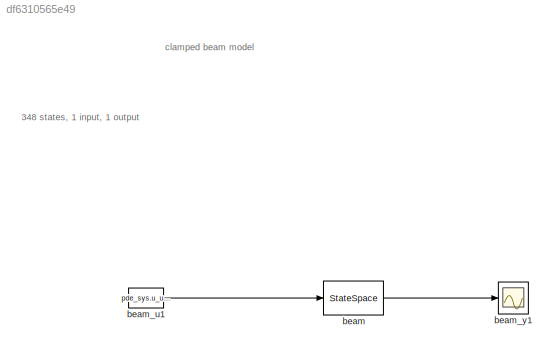
MODEL slx_df6310565e49
KIND model
BLOCK [StateSpace] beam
  A = beam_sys.sys.a
  B = beam_sys.sys.b
  C = beam_sys.sys.c
  D = beam_sys.sys.d
  Ports = [1, 1]
  X0 = beam_sys.x0_lb
BLOCK [Constant] beam_u1
  Value = pde_sys.u_ub(1)
BLOCK [Scope] beam_y1
  Floating = off
  NumInputPorts = 1
  Ports = [1]
  SaveName = ScopeData32
  ShowLegends = off
ANNOTATION (root): 348 states, 1 input, 1 output
ANNOTATION (root): clamped beam model
LINE beam:1 -> beam_y1:1
LINE beam_u1:1 -> beam:1
